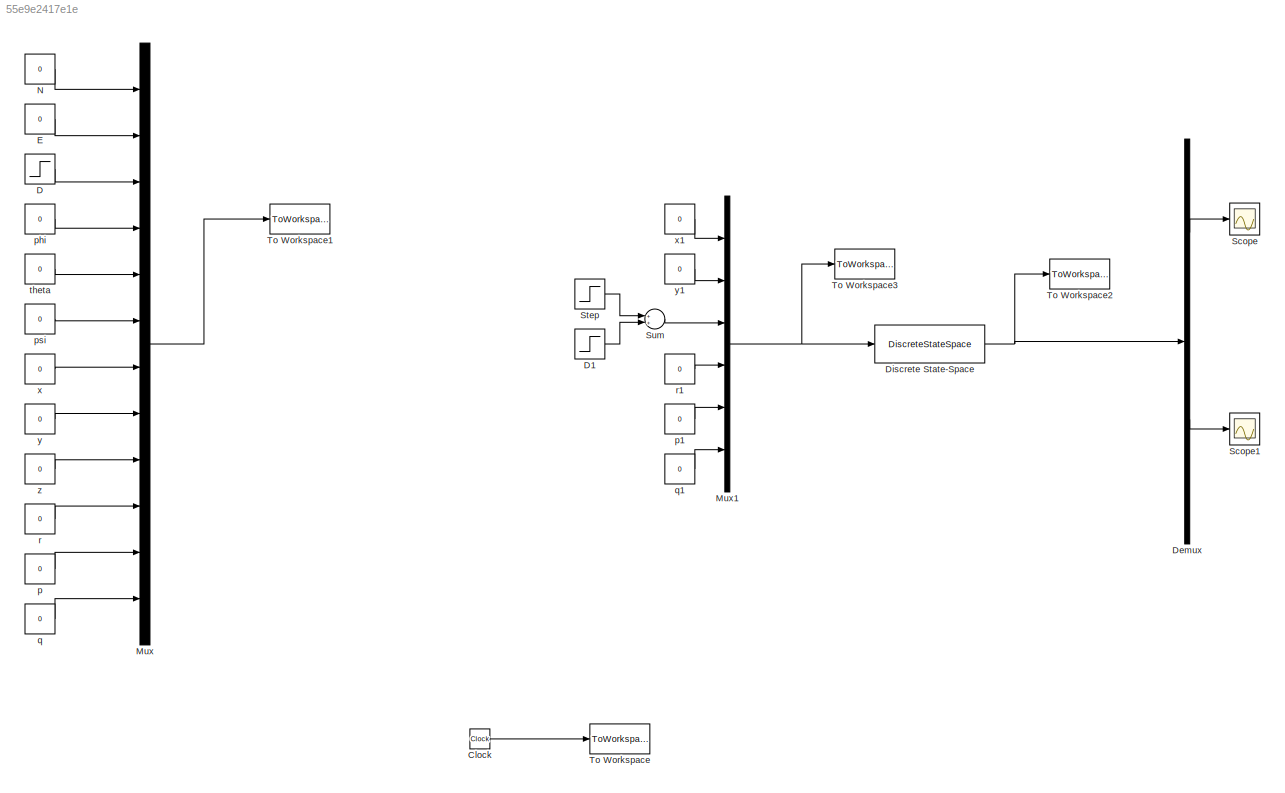
MODEL slx_55e9e2417e1e
KIND model
CONFIG AbsTol = auto
CONFIG EnableMultiTasking = off
CONFIG FixedStep = auto
CONFIG MaxStep = auto
CONFIG MinStep = auto
CONFIG RelTol = 1e-3
CONFIG SampleTimeConstraint = Unconstrained
CONFIG Solver = VariableStepAuto
CONFIG SolverName = VariableStepAuto
CONFIG StartTime = 0.0
CONFIG StopTime = 10.0
BLOCK [Clock] Clock
BLOCK [Step] D
  SampleTime = 0
BLOCK [Step] D1
  SampleTime = 0
BLOCK [Demux] Demux
  DisplayOption = bar
  Outputs = 12
  Ports = [1, 12]
BLOCK [DiscreteStateSpace] Discrete State-Space
  A = modelD.A
  B = modelD.B
  C = modelD.C
  D = modelD.D
  SampleTime = -1
BLOCK [Constant] E
  Value = 0
BLOCK [Mux] Mux
  DisplayOption = bar
  Inputs = 12
  Ports = [12, 1]
BLOCK [Mux] Mux1
  DisplayOption = bar
  Inputs = 6
  Ports = [6, 1]
BLOCK [Constant] N
  Value = 0
BLOCK [Scope] Scope
  NumInputPorts = 1
  Ports = [1]
  ScopeSpecificationString = Simulink.scopes.TimeScopeBlockCfg('CurrentConfiguration', extmgr.ConfigurationSet(extmgr.Configuration('Core','General UI',true),extmgr.Configuration('Core','Source UI',true),extmgr.Configuration('Sources','WiredSimulink',true),extmgr.Configuration('Visuals','Time Domain',true,'SerializedDisplays',{struct('MinYLimReal','-8398.88805','MaxYLimReal','75589.99241','YLabelReal','','MinYLimMag','  0.000...<+1408ch>
BLOCK [Scope] Scope1
  NumInputPorts = 1
  Ports = [1]
  ScopeSpecificationString = Simulink.scopes.TimeScopeBlockCfg('CurrentConfiguration', extmgr.ConfigurationSet(extmgr.Configuration('Core','General UI',true),extmgr.Configuration('Core','Source UI',true),extmgr.Configuration('Sources','WiredSimulink',true,'DataLoggingVariableName','ScopeData1'),extmgr.Configuration('Visuals','Time Domain',true,'SerializedDisplays',{struct('MinYLimReal','-21603.7494','MaxYLimReal','194433.7445...<+1424ch>
BLOCK [Step] Step
  After = 0
  Before = 1
  SampleTime = 0
  Time = 4
BLOCK [Sum] Sum
  InputSameDT = off
  OutDataTypeStr = Inherit: Inherit via internal rule
  Ports = [2, 1]
  SaturateOnIntegerOverflow = off
BLOCK [ToWorkspace] To Workspace
  FixptAsFi = on
  MaxDataPoints = inf
  Ports = [1]
  SampleTime = -1
  Save2DSignal = 3-D array (concatenate along third dimension)
  VariableName = t
BLOCK [ToWorkspace] To Workspace1
  FixptAsFi = on
  MaxDataPoints = inf
  Ports = [1]
  SampleTime = -1
  Save2DSignal = 3-D array (concatenate along third dimension)
  VariableName = r
BLOCK [ToWorkspace] To Workspace2
  FixptAsFi = on
  MaxDataPoints = inf
  Ports = [1]
  SampleTime = -1
  Save2DSignal = 3-D array (concatenate along third dimension)
  VariableName = y
BLOCK [ToWorkspace] To Workspace3
  FixptAsFi = on
  MaxDataPoints = inf
  Ports = [1]
  SampleTime = -1
  Save2DSignal = 3-D array (concatenate along third dimension)
  VariableName = u
BLOCK [Constant] p
  Value = 0
BLOCK [Constant] p1
  Value = 0
BLOCK [Constant] phi
  Value = 0
BLOCK [Constant] psi
  Value = 0
BLOCK [Constant] q
  Value = 0
BLOCK [Constant] q1
  Value = 0
BLOCK [Constant] r
  Value = 0
BLOCK [Constant] r1
  Value = 0
BLOCK [Constant] theta
  Value = 0
BLOCK [Constant] x
  Value = 0
BLOCK [Constant] x1
  Value = 0
BLOCK [Constant] y
  Value = 0
BLOCK [Constant] y1
  Value = 0
BLOCK [Constant] z
  Value = 0
LINE Clock:1 -> To Workspace:1
LINE D1:1 -> Sum:2
LINE D:1 -> Mux:3
LINE Demux:3 -> Scope:1
LINE Demux:9 -> Scope1:1
NET Discrete State-Space:1 -> Demux:1, To Workspace2:1
LINE E:1 -> Mux:2
NET Mux1:1 -> Discrete State-Space:1, To Workspace3:1
LINE Mux:1 -> To Workspace1:1
LINE N:1 -> Mux:1
LINE Step:1 -> Sum:1
LINE Sum:1 -> Mux1:3
LINE p1:1 -> Mux1:5
LINE p:1 -> Mux:11
LINE phi:1 -> Mux:4
LINE psi:1 -> Mux:6
LINE q1:1 -> Mux1:6
LINE q:1 -> Mux:12
LINE r1:1 -> Mux1:4
LINE r:1 -> Mux:10
LINE theta:1 -> Mux:5
LINE x1:1 -> Mux1:1
LINE x:1 -> Mux:7
LINE y1:1 -> Mux1:2
LINE y:1 -> Mux:8
LINE z:1 -> Mux:9
note: NET lines group one-source signal fan-out (src -> all destinations, sorted); 1:1 wires keep LINE
